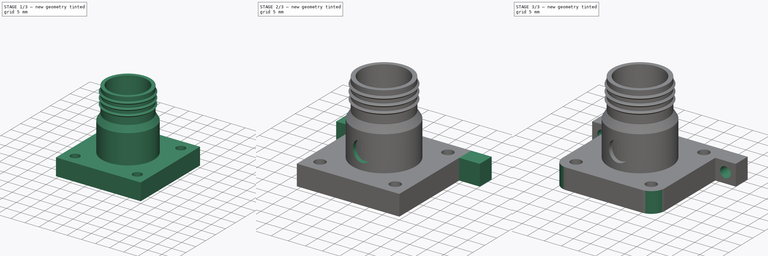
[diagram: build sequence overview — one tinted view per stage of 3, left to right]
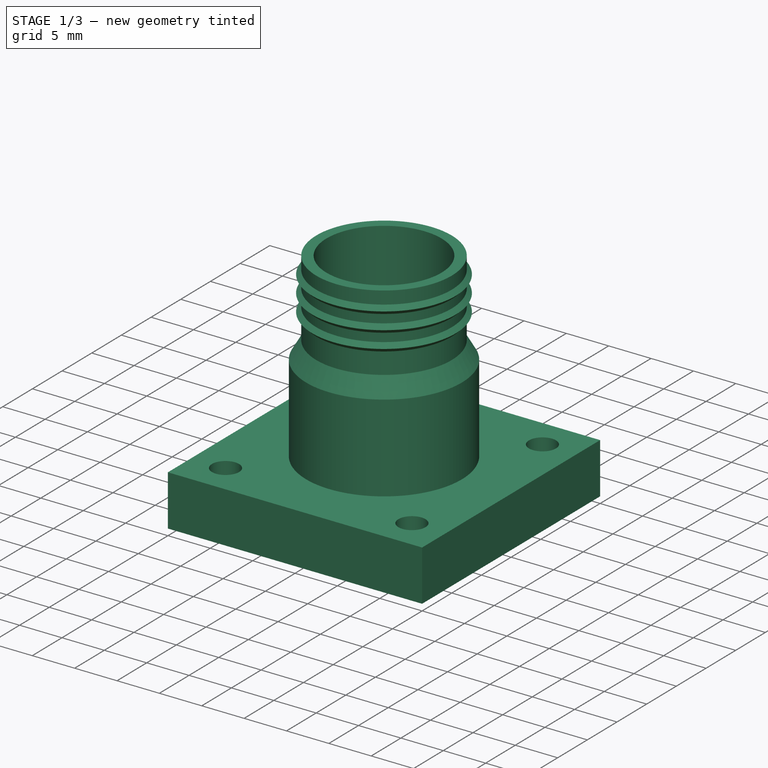
[diagram: stage 1 of 3 — iso view after this stage's code; geometry added in this stage tinted green]
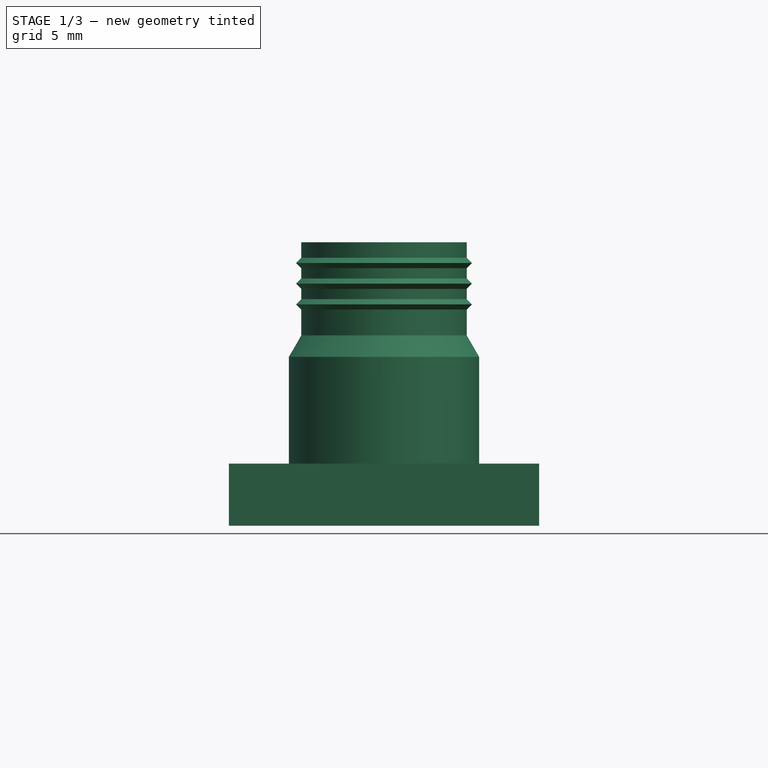
[diagram: stage 1 of 3 — front view after this stage's code; geometry added in this stage tinted green]
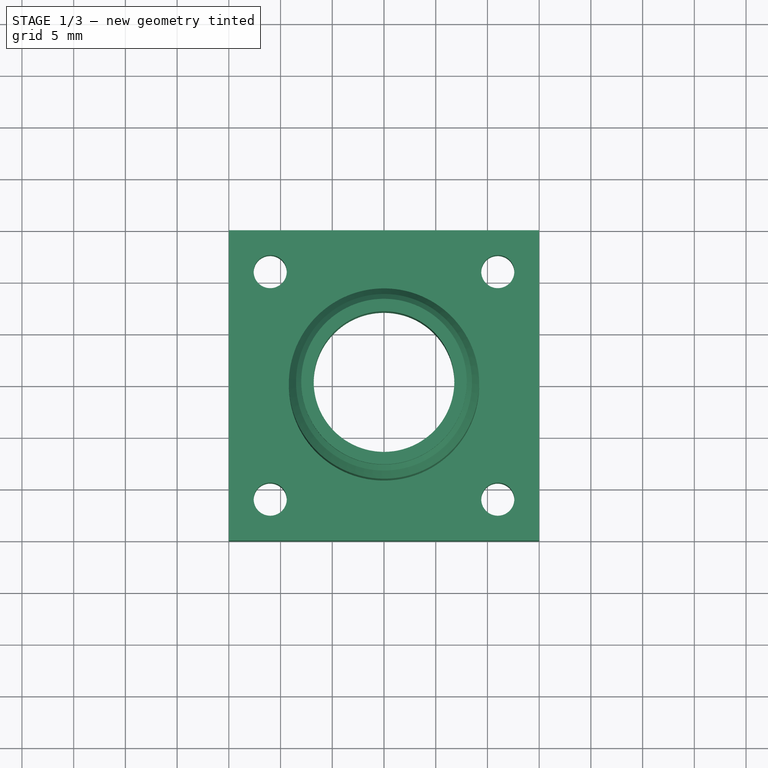
[diagram: stage 1 of 3 — top view after this stage's code; geometry added in this stage tinted green]
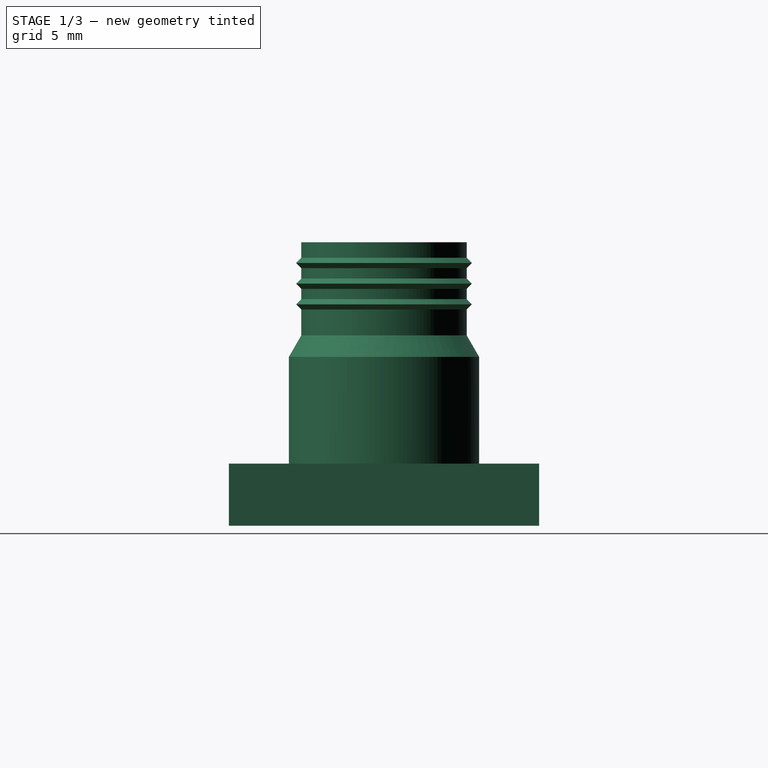
[diagram: stage 1 of 3 — right view after this stage's code; geometry added in this stage tinted green]
FCSTD DOCUMENT  (FreeCAD 0.18R4 (GitTag))
Label: housing
License: All rights reserved
LicenseURL: http://en.wikipedia.org/wiki/All_rights_reserved
objects: Sketcher::SketchObject×5, PartDesign::Pad×2, PartDesign::Pocket×2, PartDesign::Revolution×1, PartDesign::Fillet×1, PartDesign::Body×1
note: 17 computed .brp shape members not serialized (recipe doc carries the construction recipe); baked Part::Feature solids carry a one-line shape summary decoded from their .brp

FEATURE [Sketcher::SketchObject] Sketch
  MapMode = 5
  Support = -> [XY_Plane]
  sketch-geometry (9):
    g0: LineSegment StartX=-15 StartY=-15 StartZ=0 EndX=15 EndY=-15 EndZ=0
    g1: LineSegment StartX=15 StartY=-15 StartZ=0 EndX=15 EndY=15 EndZ=0
    g2: LineSegment StartX=15 StartY=15 StartZ=0 EndX=-15 EndY=15 EndZ=0
    g3: LineSegment StartX=-15 StartY=15 StartZ=0 EndX=-15 EndY=-15 EndZ=0
    g4: Circle CenterX=0 CenterY=0 CenterZ=0 NormalX=0 NormalY=0 NormalZ=1 AngleXU=0 Radius=8
    g5: Circle CenterX=-11 CenterY=11 CenterZ=0 NormalX=0 NormalY=0 NormalZ=1 AngleXU=0 Radius=1.6
    g6: Circle CenterX=11 CenterY=11 CenterZ=0 NormalX=0 NormalY=0 NormalZ=1 AngleXU=0 Radius=1.6
    g7: Circle CenterX=-11 CenterY=-11 CenterZ=0 NormalX=0 NormalY=0 NormalZ=1 AngleXU=0 Radius=1.6
    g8: Circle CenterX=11 CenterY=-11 CenterZ=0 NormalX=0 NormalY=0 NormalZ=1 AngleXU=0 Radius=1.6
  constraints (21):
    c: Coincident(g0,g1)
    c: Coincident(g1,g2)
    c: Coincident(g2,g3)
    c: Coincident(g3,g0)
    c: Horizontal(g0)
    c: Vertical(g1)
    c: DistanceX(g2,g2) = 30
    c: DistanceY(g1,g1) = 30
    c: Symmetric(g2,g1,g-2)
    c: Symmetric(g2,g0,g-1)
    c: Coincident(g4,g-1)
    c: Radius(g4) = 8
    c: Radius(g5) = 1.6
    c: DistanceY(g5,g2) = 4
    c: DistanceX(g2,g5) = 4
    c: Equal(g6,g5)
    c: Symmetric(g5,g6,g-2)
    c: Equal(g5,g7)
    c: Equal(g7,g8)
    c: Symmetric(g5,g7,g-1)
    c: Symmetric(g7,g8,g-2)
FEATURE [PartDesign::Pad] Pad
  Length = 6
  Length2 = 100
  Profile = -> Sketch
  Type = 0
FEATURE [Sketcher::SketchObject] Sketch001
  MapMode = 5
  Placement = pos=(0,0,0) rot=(1,0,0;1.5708rad)
  Support = -> [XZ_Plane]
  sketch-geometry (17):
    g0: LineSegment StartX=9.2 StartY=6 StartZ=0 EndX=9.2 EndY=16.3215 EndZ=0
    g1: LineSegment StartX=9.2 StartY=16.3215 StartZ=0 EndX=8 EndY=18.4 EndZ=0
    g2: LineSegment StartX=8 StartY=18.4 StartZ=0 EndX=8 EndY=20.9 EndZ=0
    g3: LineSegment StartX=8 StartY=20.9 StartZ=0 EndX=8.5 EndY=21.4 EndZ=0
    g4: LineSegment StartX=8.5 StartY=21.4 StartZ=0 EndX=8 EndY=21.9 EndZ=0
    g5: LineSegment StartX=8 StartY=21.9 StartZ=0 EndX=8 EndY=22.9 EndZ=0
    g6: LineSegment StartX=8 StartY=22.9 StartZ=0 EndX=8.5 EndY=23.4 EndZ=0
    g7: LineSegment StartX=8.5 StartY=23.4 StartZ=0 EndX=8 EndY=23.9 EndZ=0
    g8: LineSegment StartX=8 StartY=23.9 StartZ=0 EndX=8 EndY=24.9 EndZ=0
    g9: LineSegment StartX=8 StartY=24.9 StartZ=0 EndX=8.5 EndY=25.4 EndZ=0
    g10: LineSegment StartX=8.5 StartY=25.4 StartZ=0 EndX=8 EndY=25.9 EndZ=0
    g11: LineSegment StartX=8 StartY=25.9 StartZ=0 EndX=8 EndY=27.4 EndZ=0
    g12: LineSegment StartX=8 StartY=27.4 StartZ=0 EndX=6.8 EndY=27.4 EndZ=0
    g13: LineSegment StartX=6.8 StartY=27.4 StartZ=0 EndX=6.8 EndY=18.0785 EndZ=0
    g14: LineSegment StartX=6.8 StartY=18.0785 StartZ=0 EndX=8 EndY=16 EndZ=0
    g15: LineSegment StartX=8 StartY=16 StartZ=0 EndX=8 EndY=6 EndZ=0
    g16: LineSegment StartX=8 StartY=6 StartZ=0 EndX=9.2 EndY=6 EndZ=0
  constraints (51):
    c: Vertical(g0)
    c: Coincident(g0,g1)
    c: Coincident(g1,g2)
    c: Vertical(g2)
    c: Coincident(g2,g3)
    c: Coincident(g3,g4)
    c: Coincident(g4,g5)
    c: Coincident(g5,g6)
    c: Coincident(g6,g7)
    c: Coincident(g7,g8)
    c: Vertical(g8)
    c: Coincident(g8,g9)
    c: Coincident(g9,g10)
    c: Coincident(g10,g11)
    c: Vertical(g11)
    c: Coincident(g11,g12)
    c: Coincident(g12,g13)
    c: Vertical(g13)
    c: Coincident(g13,g14)
    c: Coincident(g14,g15)
    c: Vertical(g15)
    c: Coincident(g15,g16)
    c: Coincident(g16,g0)
    c: Horizontal(g16)
    c: Parallel(g1,g14)
    c: Vertical(g5)
    c: Horizontal(g12)
    c: Vertical(g8,g10)
    c: Vertical(g7,g5)
    c: Vertical(g4,g2)
    c: Parallel(g3,g6)
    c: Parallel(g9,g6)
    c: Parallel(g7,g10)
    c: Parallel(g7,g4)
    c: Vertical(g6,g9)
    c: Vertical(g6,g3)
    c: DistanceX(g12,g12) = 1.2
    c: DistanceX(g-1,g15) = 8
    c: DistanceY(g-1,g15) = 6
    c: Distance(g1,g14) = 1.2
    c: Distance(g14,g0) = 1.2
    c: Angle(g14,g15) = 2.61799
    c: DistanceX(g4,g3) = 0.5
    c: DistanceX(g-1,g11) = 8
    c: DistanceY(g9,g11) = 2
    c: DistanceY(g6,g9) = 2
    c: Angle(g8,g9) = 2.35619
    c: Angle(g10,g9) = 1.5708
    c: DistanceY(g3,g6) = 2
    c: DistanceY(g1,g3) = 3
    c: DistanceY(g15,g15) = 10
FEATURE [PartDesign::Revolution] Revolution
  Angle = 360
  Axis = (0,-2e-16,1)
  Base = (0,0,0)
  BaseFeature = -> Pad
  Profile = -> Sketch001
  ReferenceAxis = -> Sketch001 [V_Axis]
  Reversed = true
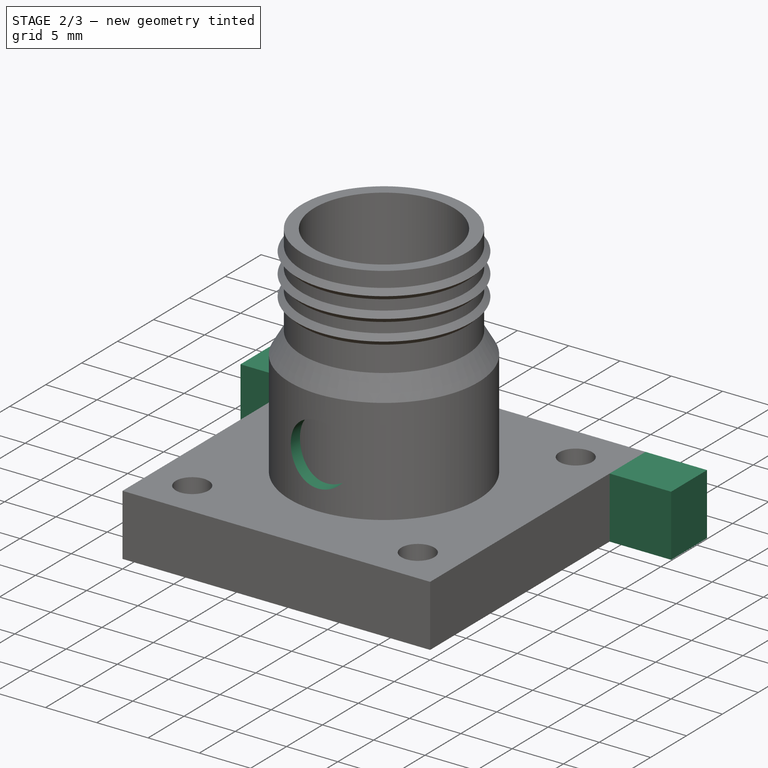
[diagram: stage 2 of 3 — iso view after this stage's code; geometry added in this stage tinted green]
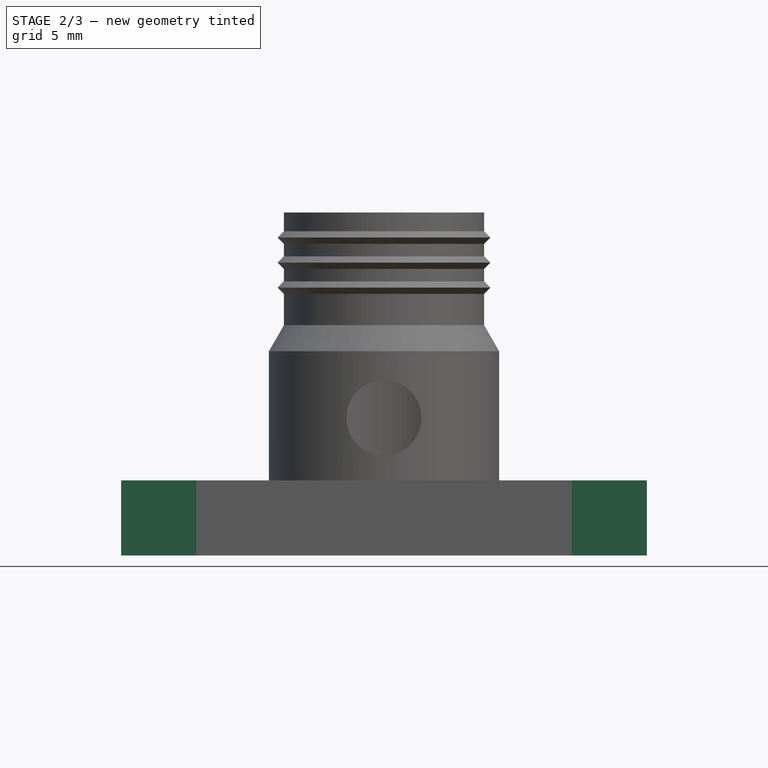
[diagram: stage 2 of 3 — front view after this stage's code; geometry added in this stage tinted green]
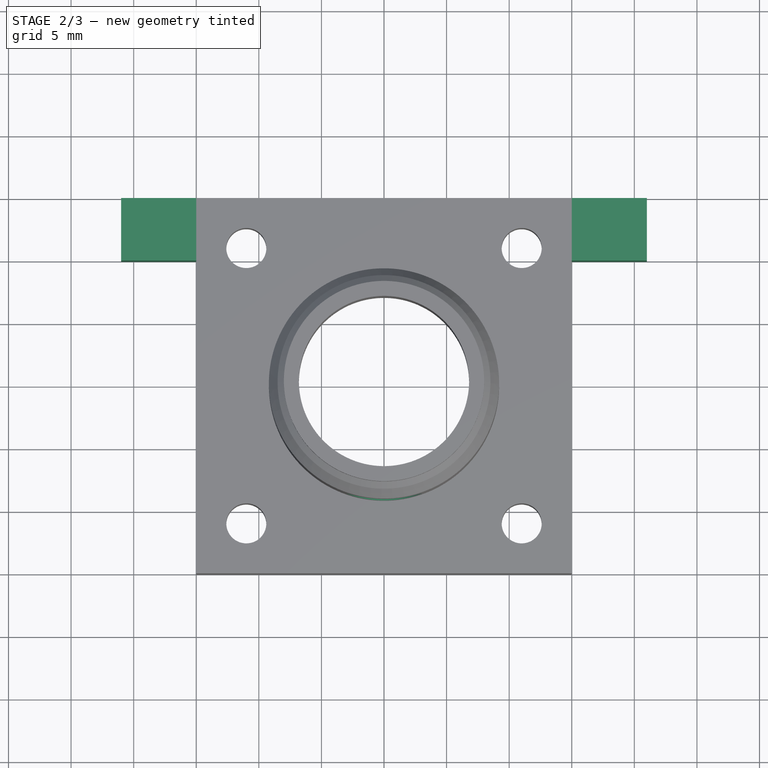
[diagram: stage 2 of 3 — top view after this stage's code; geometry added in this stage tinted green]
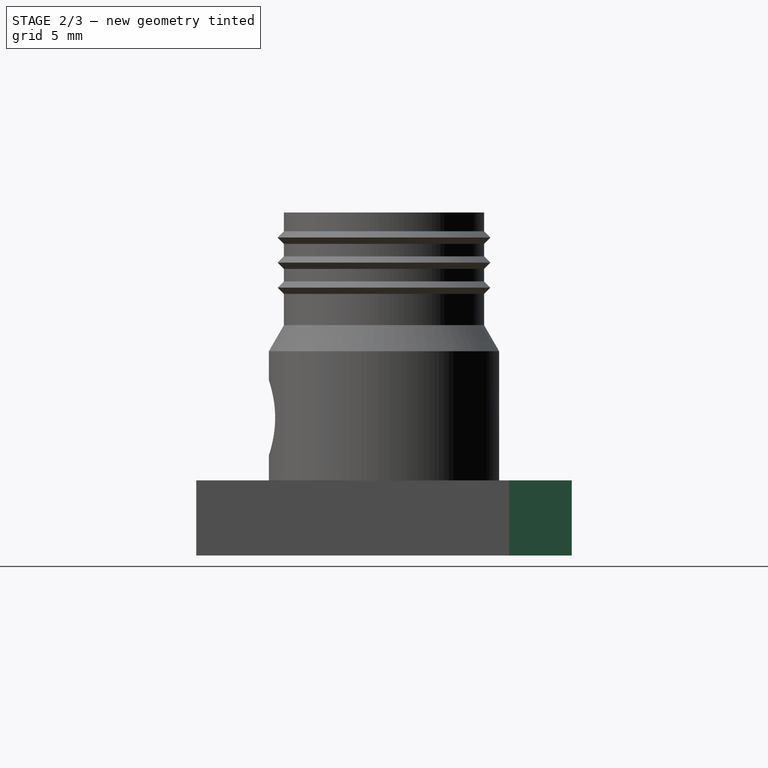
[diagram: stage 2 of 3 — right view after this stage's code; geometry added in this stage tinted green]
FEATURE [Sketcher::SketchObject] Sketch002
  MapMode = 5
  Placement = pos=(0,0,0) rot=(1,0,0;1.5708rad)
  Support = -> [XZ_Plane]
  sketch-geometry (1):
    g0: Circle CenterX=0 CenterY=11 CenterZ=0 NormalX=0 NormalY=0 NormalZ=1 AngleXU=0 Radius=3
  constraints (3):
    c: PointOnObject(g0,g-2)
    c: Radius(g0) = 3
    c: DistanceY(g-1,g0) = 11
FEATURE [PartDesign::Pocket] Pocket
  BaseFeature = -> Revolution
  Length = 5
  Length2 = 100
  Profile = -> Sketch002
  Refine = true
  Reversed = true
  Type = 1
FEATURE [Sketcher::SketchObject] CopySketch003
  Placement = pos=(0,0,0) rot=(1,0,0;3.14159rad)
  sketch-geometry (8):
    g0: LineSegment StartX=-21 StartY=-15 StartZ=0 EndX=-14 EndY=-15 EndZ=0
    g1: LineSegment StartX=-14 StartY=-15 StartZ=0 EndX=-14 EndY=-10 EndZ=0
    g2: LineSegment StartX=-14 StartY=-10 StartZ=0 EndX=-21 EndY=-10 EndZ=0
    g3: LineSegment StartX=-21 StartY=-10 StartZ=0 EndX=-21 EndY=-15 EndZ=0
    g4: LineSegment StartX=14 StartY=-15 StartZ=0 EndX=21 EndY=-15 EndZ=0
    g5: LineSegment StartX=21 StartY=-15 StartZ=0 EndX=21 EndY=-10 EndZ=0
    g6: LineSegment StartX=21 StartY=-10 StartZ=0 EndX=14 EndY=-10 EndZ=0
    g7: LineSegment StartX=14 StartY=-10 StartZ=0 EndX=14 EndY=-15 EndZ=0
  constraints (24):
    c: Coincident(g0,g1)
    c: Coincident(g1,g2)
    c: Coincident(g2,g3)
    c: Coincident(g3,g0)
    c: Horizontal(g0)
    c: Horizontal(g2)
    c: Vertical(g1)
    c: Vertical(g3)
    c: Coincident(g4,g5)
    c: Coincident(g5,g6)
    c: Coincident(g6,g7)
    c: Coincident(g7,g4)
    c: Horizontal(g4)
    c: Horizontal(g6)
    c: Vertical(g5)
    c: Vertical(g7)
    c: DistanceY(g0,g4) = 0
    c: DistanceY(g4,g-1) = 15
    c: DistanceY(g3,g3) = 5
    c: DistanceY(g5,g5) = 5
    c: DistanceX(g1,g-1) = 14
    c: DistanceX(g1,g6) = 28
    c: DistanceX(g2,g2) = 7
    c: DistanceX(g6,g6) = 7
FEATURE [PartDesign::Pad] Pad001
  BaseFeature = -> Pocket
  Length = 6
  Length2 = 100
  Profile = -> CopySketch003
  Reversed = true
  Type = 0
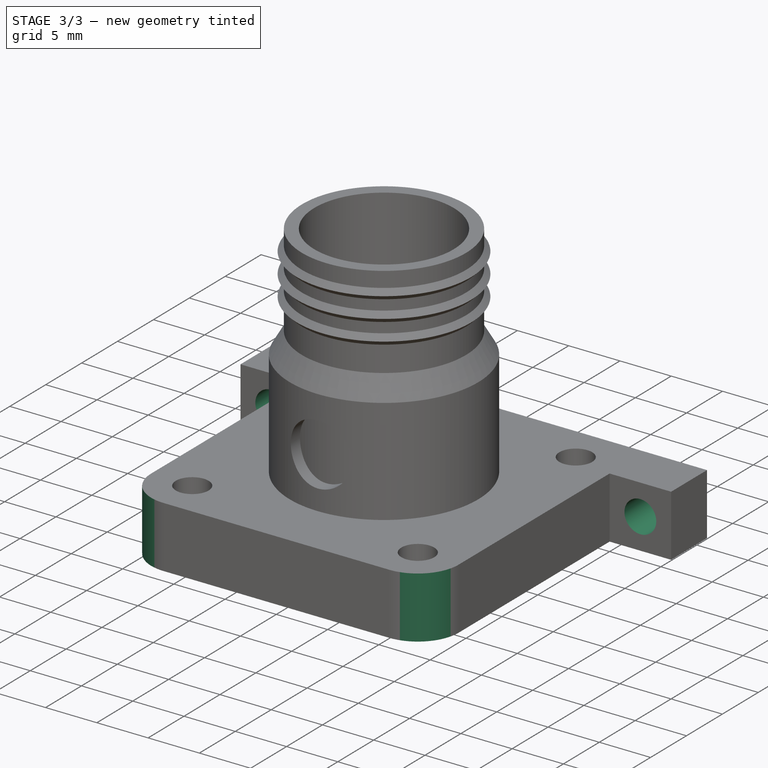
[diagram: stage 3 of 3 — iso view after this stage's code; geometry added in this stage tinted green]
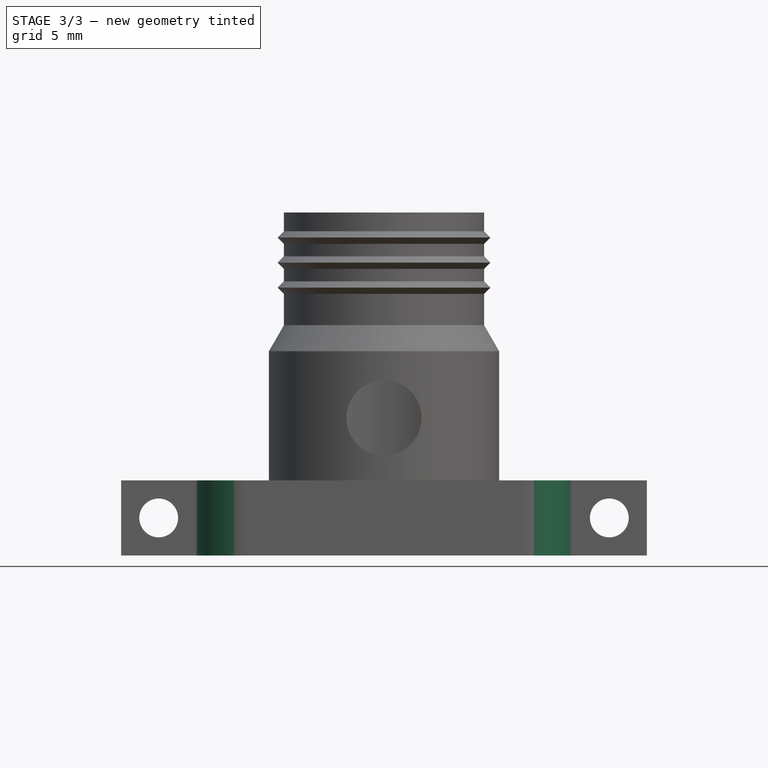
[diagram: stage 3 of 3 — front view after this stage's code; geometry added in this stage tinted green]
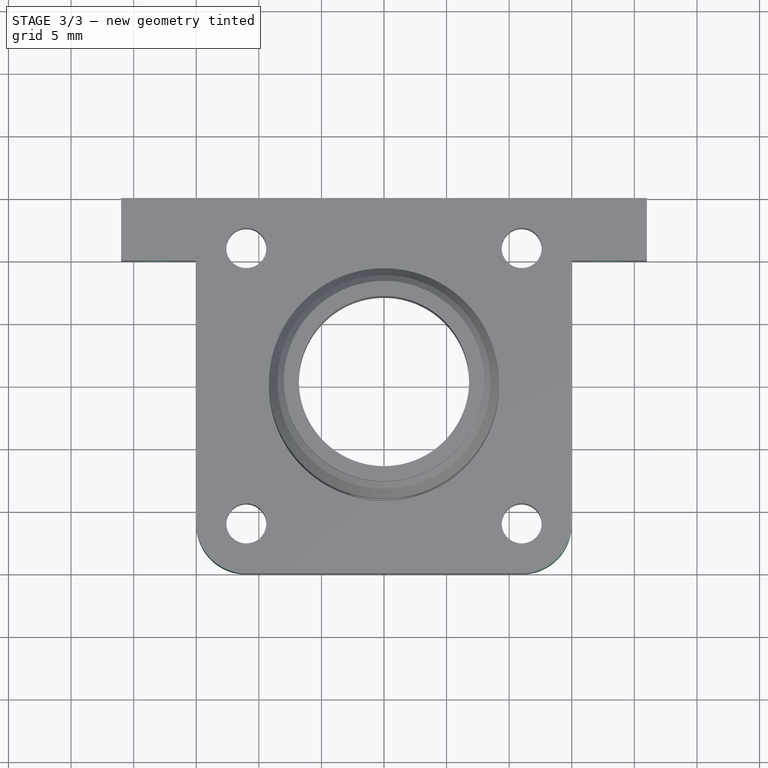
[diagram: stage 3 of 3 — top view after this stage's code; geometry added in this stage tinted green]
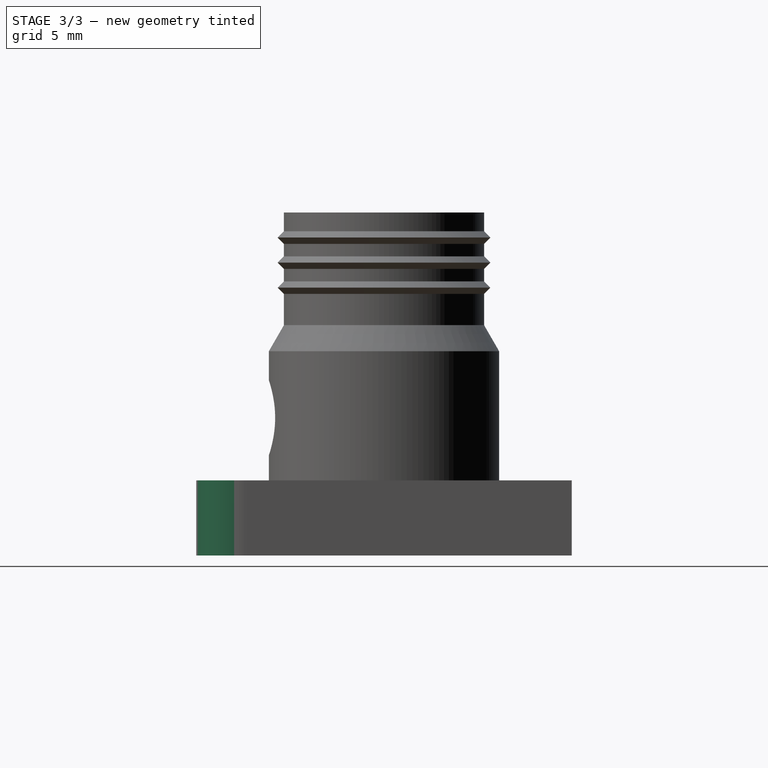
[diagram: stage 3 of 3 — right view after this stage's code; geometry added in this stage tinted green]
FEATURE [Sketcher::SketchObject] CopySketch004
  Placement = pos=(0,10,0) rot=(1,0,0;1.5708rad)
  sketch-geometry (2):
    g0: Circle CenterX=-18 CenterY=3 CenterZ=0 NormalX=0 NormalY=0 NormalZ=1 AngleXU=0 Radius=1.55
    g1: Circle CenterX=18 CenterY=3 CenterZ=0 NormalX=0 NormalY=0 NormalZ=1 AngleXU=0 Radius=1.55
  constraints (6):
    c: Radius(g0) = 1.55
    c: Radius(g1) = 1.55
    c: DistanceY(g0,g1) = 0
    c: DistanceX(g0,g-1) = 18
    c: DistanceX(g0,g1) = 36
    c: DistanceY(g-1,g0) = 3
FEATURE [PartDesign::Pocket] Pocket001
  BaseFeature = -> Pad001
  Length = 5
  Length2 = 100
  Profile = -> CopySketch004
  Refine = true
  Type = 0
FEATURE [PartDesign::Fillet] Fillet
  Base = -> Pocket001 [Edge1,Edge2]
  BaseFeature = -> Pocket001
  Radius = 4
FEATURE [PartDesign::Body] Body
  Group = -> [Sketch,Pad,Sketch001,Revolution,Sketch002,Pocket,Pad001,Pocket001,Fillet]
  Origin = -> Origin
  Tip = -> Fillet
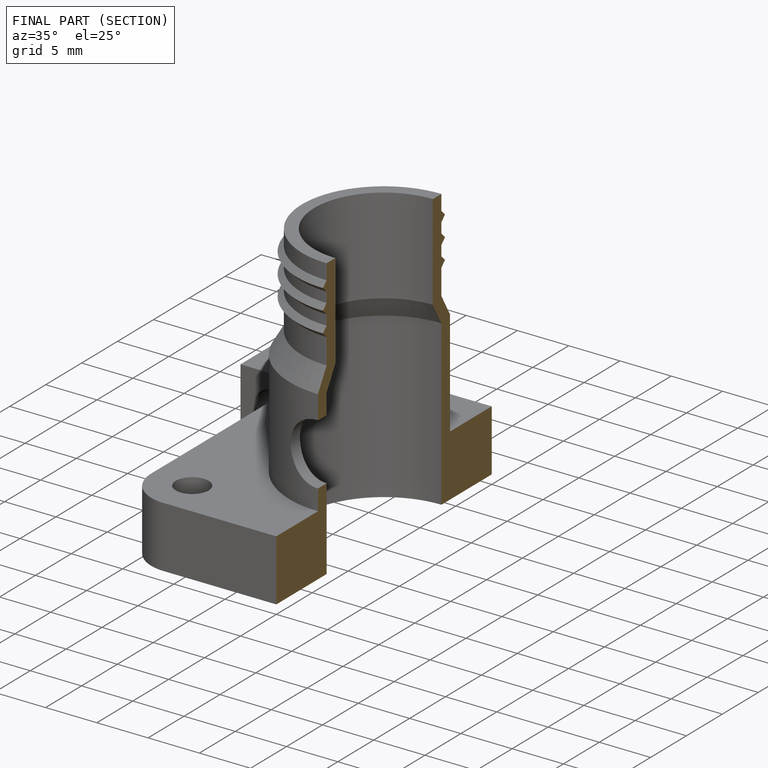
[diagram: finished part — half-section view (interior)]
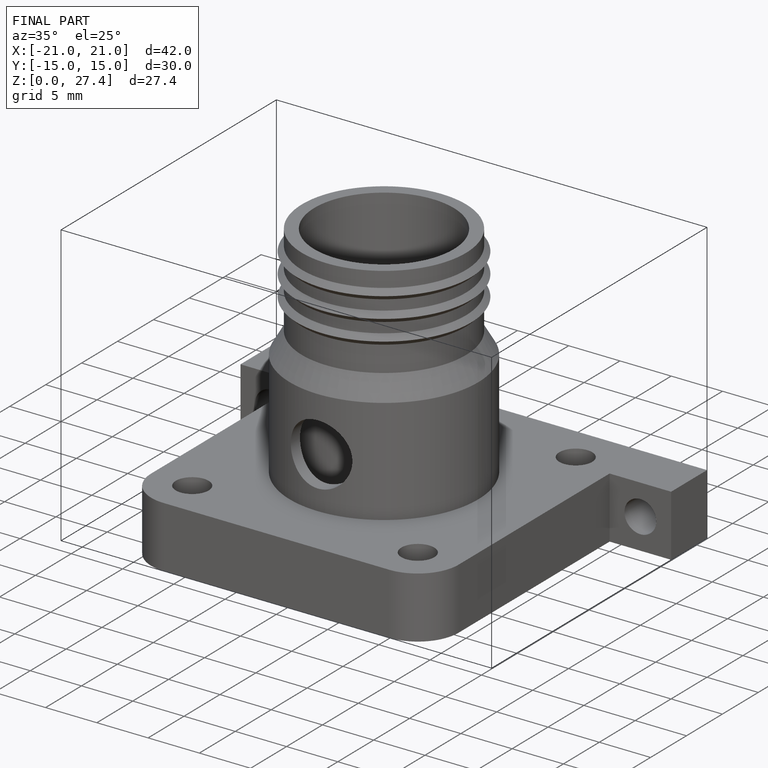
[diagram: finished part — iso view with bounding-box wireframe]
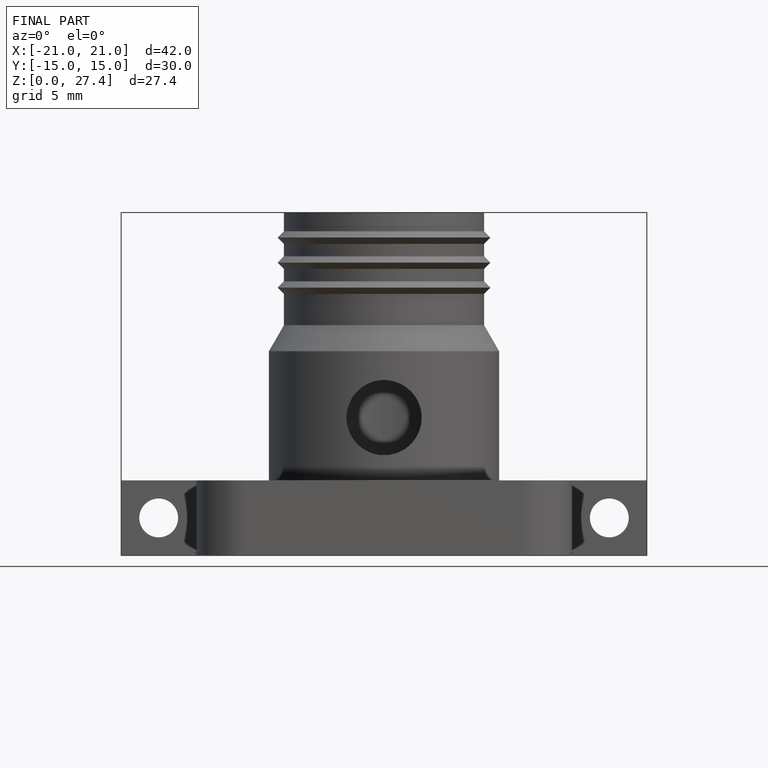
[diagram: finished part — front view with bounding-box wireframe]
